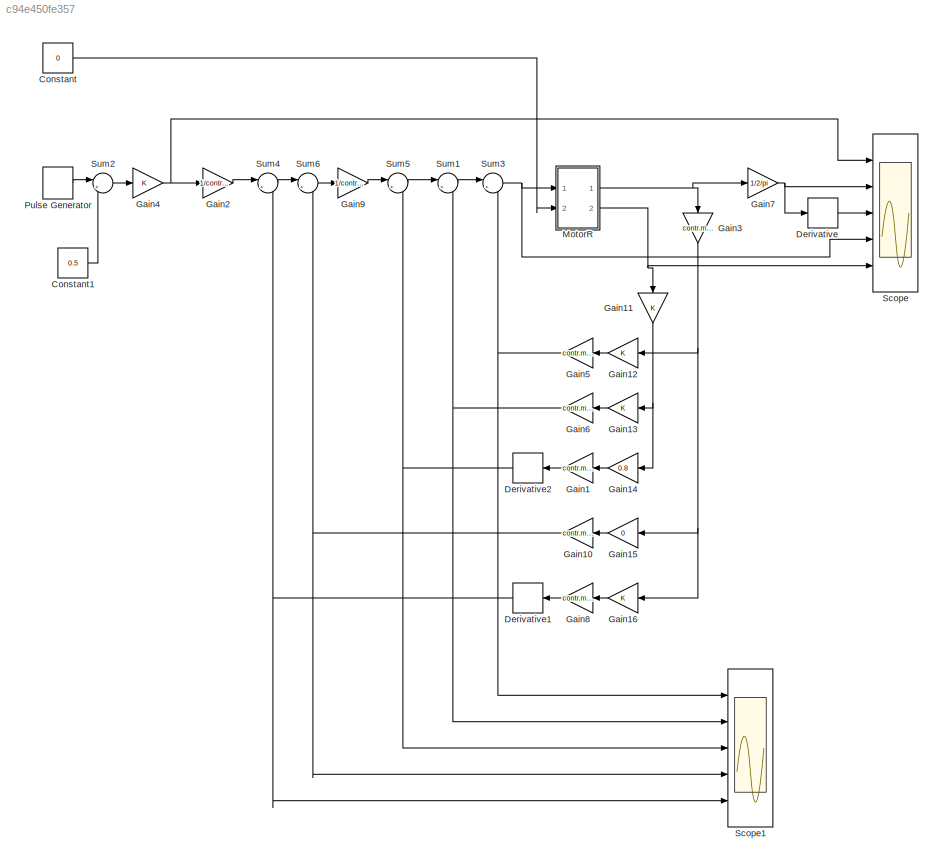
MODEL slx_c94e450fe357
KIND model
BLOCK [Constant] Constant
  Value = 0
BLOCK [Constant] Constant1
  Value = 0.5
BLOCK [Derivative] Derivative
BLOCK [Derivative] Derivative1
BLOCK [Derivative] Derivative2
BLOCK [Gain] Gain1
  Gain = contr.mot.L
  OutDataTypeStr = Inherit: Inherit via internal rule
  ParamDataTypeStr = Inherit: Inherit via internal rule
  SaturateOnIntegerOverflow = off
BLOCK [Gain] Gain10
  Gain = contr.mot.f
  OutDataTypeStr = Inherit: Inherit via internal rule
  ParamDataTypeStr = Inherit: Inherit via internal rule
  SaturateOnIntegerOverflow = off
BLOCK [Gain] Gain11
  OutDataTypeStr = Inherit: Inherit via internal rule
  ParamDataTypeStr = Inherit: Inherit via internal rule
  SaturateOnIntegerOverflow = off
BLOCK [Gain] Gain12
  OutDataTypeStr = Inherit: Inherit via internal rule
  ParamDataTypeStr = Inherit: Inherit via internal rule
  SaturateOnIntegerOverflow = off
BLOCK [Gain] Gain13
  OutDataTypeStr = Inherit: Inherit via internal rule
  ParamDataTypeStr = Inherit: Inherit via internal rule
  SaturateOnIntegerOverflow = off
BLOCK [Gain] Gain14
  Gain = 0.8
  OutDataTypeStr = Inherit: Inherit via internal rule
  ParamDataTypeStr = Inherit: Inherit via internal rule
  SaturateOnIntegerOverflow = off
BLOCK [Gain] Gain15
  Gain = 0
  OutDataTypeStr = Inherit: Inherit via internal rule
  ParamDataTypeStr = Inherit: Inherit via internal rule
  SaturateOnIntegerOverflow = off
BLOCK [Gain] Gain16
  OutDataTypeStr = Inherit: Inherit via internal rule
  ParamDataTypeStr = Inherit: Inherit via internal rule
  SaturateOnIntegerOverflow = off
BLOCK [Gain] Gain2
  Gain = 1/contr.mot.r
  OutDataTypeStr = Inherit: Inherit via internal rule
  ParamDataTypeStr = Inherit: Inherit via internal rule
  SaturateOnIntegerOverflow = off
BLOCK [Gain] Gain3
  Gain = contr.mot.r
  OutDataTypeStr = Inherit: Inherit via internal rule
  ParamDataTypeStr = Inherit: Inherit via internal rule
  SaturateOnIntegerOverflow = off
BLOCK [Gain] Gain4
  OutDataTypeStr = Inherit: Inherit via internal rule
  ParamDataTypeStr = Inherit: Inherit via internal rule
  SaturateOnIntegerOverflow = off
BLOCK [Gain] Gain5
  Gain = contr.mot.Ke
  OutDataTypeStr = Inherit: Inherit via internal rule
  ParamDataTypeStr = Inherit: Inherit via internal rule
  SaturateOnIntegerOverflow = off
BLOCK [Gain] Gain6
  Gain = contr.mot.R
  OutDataTypeStr = Inherit: Inherit via internal rule
  ParamDataTypeStr = Inherit: Inherit via internal rule
  SaturateOnIntegerOverflow = off
BLOCK [Gain] Gain7
  Gain = 1/2/pi
  OutDataTypeStr = Inherit: Inherit via internal rule
  ParamDataTypeStr = Inherit: Inherit via internal rule
  SaturateOnIntegerOverflow = off
BLOCK [Gain] Gain8
  Gain = contr.mot.J
  OutDataTypeStr = Inherit: Inherit via internal rule
  ParamDataTypeStr = Inherit: Inherit via internal rule
  SaturateOnIntegerOverflow = off
BLOCK [Gain] Gain9
  Gain = 1/contr.mot.Kc
  OutDataTypeStr = Inherit: Inherit via internal rule
  ParamDataTypeStr = Inherit: Inherit via internal rule
  SaturateOnIntegerOverflow = off
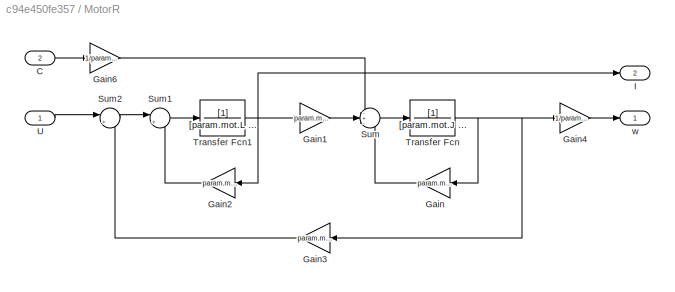
BLOCK [SubSystem] MotorR
  Ports = [2, 2]
  RequestExecContextInheritance = off
BLOCK [Inport] MotorR/C
  IconDisplay = Port number
  Port = 2
BLOCK [Gain] MotorR/Gain
  Gain = param.mot.f
  OutDataTypeStr = Inherit: Inherit via internal rule
  ParamDataTypeStr = Inherit: Inherit via internal rule
  SaturateOnIntegerOverflow = off
BLOCK [Gain] MotorR/Gain1
  Gain = param.mot.Kc
  OutDataTypeStr = Inherit: Inherit via internal rule
  ParamDataTypeStr = Inherit: Inherit via internal rule
  SaturateOnIntegerOverflow = off
BLOCK [Gain] MotorR/Gain2
  Gain = param.mot.R
  OutDataTypeStr = Inherit: Inherit via internal rule
  ParamDataTypeStr = Inherit: Inherit via internal rule
  SaturateOnIntegerOverflow = off
BLOCK [Gain] MotorR/Gain3
  Gain = param.mot.Ke
  OutDataTypeStr = Inherit: Inherit via internal rule
  ParamDataTypeStr = Inherit: Inherit via internal rule
  SaturateOnIntegerOverflow = off
BLOCK [Gain] MotorR/Gain4
  Gain = 1/param.mot.r
  OutDataTypeStr = Inherit: Inherit via internal rule
  ParamDataTypeStr = Inherit: Inherit via internal rule
  SaturateOnIntegerOverflow = off
BLOCK [Gain] MotorR/Gain6
  Gain = 1/param.mot.r
  OutDataTypeStr = Inherit: Inherit via internal rule
  ParamDataTypeStr = Inherit: Inherit via internal rule
  SaturateOnIntegerOverflow = off
BLOCK [Outport] MotorR/I
  IconDisplay = Port number
  Port = 2
BLOCK [Sum] MotorR/Sum
  IconShape = round
  InputSameDT = off
  Inputs = -+-
  OutDataTypeStr = Inherit: Inherit via internal rule
  Ports = [3, 1]
  SaturateOnIntegerOverflow = off
BLOCK [Sum] MotorR/Sum1
  IconShape = round
  InputSameDT = off
  Inputs = |+-
  OutDataTypeStr = Inherit: Inherit via internal rule
  Ports = [2, 1]
  SaturateOnIntegerOverflow = off
BLOCK [Sum] MotorR/Sum2
  IconShape = round
  InputSameDT = off
  Inputs = |+-
  OutDataTypeStr = Inherit: Inherit via internal rule
  Ports = [2, 1]
  SaturateOnIntegerOverflow = off
BLOCK [TransferFcn] MotorR/Transfer Fcn
  Denominator = [param.mot.J 0]
BLOCK [TransferFcn] MotorR/Transfer Fcn1
  Denominator = [param.mot.L 0]
BLOCK [Inport] MotorR/U
  IconDisplay = Port number
BLOCK [Outport] MotorR/w
  IconDisplay = Port number
BLOCK [DiscretePulseGenerator] Pulse Generator
  Period = 1
  PhaseDelay = 0.25
  Ports = [0, 1]
  PulseType = Time based
  PulseWidth = 50
BLOCK [Scope] Scope
  Floating = off
  MaxDataPoints = 500000
  NumInputPorts = 5
  Ports = [5]
  ShowLegends = off
  TimeRange = 10
  YMax = 0.5~10~40~30~3
  YMin = -0.5~-10~-40~-30~-3
BLOCK [Scope] Scope1
  Floating = off
  MaxDataPoints = 500000
  NumInputPorts = 5
  Ports = [5]
  SaveName = ScopeData1
  ShowLegends = off
  TimeRange = 10
  YMax = 30~5~1~1~0.04
  YMin = -30~-5~-1~-1~-0.04
BLOCK [Sum] Sum1
  IconShape = round
  InputSameDT = off
  Inputs = |++
  OutDataTypeStr = Inherit: Inherit via internal rule
  Ports = [2, 1]
  SaturateOnIntegerOverflow = off
BLOCK [Sum] Sum2
  IconShape = round
  InputSameDT = off
  Inputs = |+-
  OutDataTypeStr = Inherit: Inherit via internal rule
  Ports = [2, 1]
  SaturateOnIntegerOverflow = off
BLOCK [Sum] Sum3
  IconShape = round
  InputSameDT = off
  Inputs = |++
  OutDataTypeStr = Inherit: Inherit via internal rule
  Ports = [2, 1]
  SaturateOnIntegerOverflow = off
BLOCK [Sum] Sum4
  IconShape = round
  InputSameDT = off
  Inputs = |+-
  OutDataTypeStr = Inherit: Inherit via internal rule
  Ports = [2, 1]
  SaturateOnIntegerOverflow = off
BLOCK [Sum] Sum5
  IconShape = round
  InputSameDT = off
  Inputs = |++
  OutDataTypeStr = Inherit: Inherit via internal rule
  Ports = [2, 1]
  SaturateOnIntegerOverflow = off
BLOCK [Sum] Sum6
  IconShape = round
  InputSameDT = off
  Inputs = |++
  OutDataTypeStr = Inherit: Inherit via internal rule
  Ports = [2, 1]
  SaturateOnIntegerOverflow = off
LINE Constant1:1 -> Sum2:2
LINE Constant:1 -> MotorR:2
NET Derivative1:1 -> Scope1:5, Sum4:2
NET Derivative2:1 -> Scope1:3, Sum5:2
LINE Derivative:1 -> Scope:3
NET Gain10:1 -> Scope1:4, Sum6:2
NET Gain11:1 -> Gain13:1, Gain14:1
LINE Gain12:1 -> Gain5:1
LINE Gain13:1 -> Gain6:1
LINE Gain14:1 -> Gain1:1
LINE Gain15:1 -> Gain10:1
LINE Gain16:1 -> Gain8:1
LINE Gain1:1 -> Derivative2:1
LINE Gain2:1 -> Sum4:1
NET Gain3:1 -> Gain12:1, Gain15:1, Gain16:1
NET Gain4:1 -> Gain2:1, Scope:1
NET Gain5:1 -> Scope1:1, Sum3:2
NET Gain6:1 -> Scope1:2, Sum1:2
NET Gain7:1 -> Derivative:1, Scope:2
LINE Gain8:1 -> Derivative1:1
LINE Gain9:1 -> Sum5:1
LINE MotorR/C:1 -> MotorR/Gain6:1
LINE MotorR/Gain1:1 -> MotorR/Sum:2
LINE MotorR/Gain2:1 -> MotorR/Sum1:2
LINE MotorR/Gain3:1 -> MotorR/Sum2:2
LINE MotorR/Gain4:1 -> MotorR/w:1
LINE MotorR/Gain6:1 -> MotorR/Sum:1
LINE MotorR/Gain:1 -> MotorR/Sum:3
LINE MotorR/Sum1:1 -> MotorR/Transfer Fcn1:1
LINE MotorR/Sum2:1 -> MotorR/Sum1:1
LINE MotorR/Sum:1 -> MotorR/Transfer Fcn:1
NET MotorR/Transfer Fcn1:1 -> MotorR/Gain1:1, MotorR/Gain2:1, MotorR/I:1
NET MotorR/Transfer Fcn:1 -> MotorR/Gain3:1, MotorR/Gain4:1, MotorR/Gain:1
LINE MotorR/U:1 -> MotorR/Sum2:1
NET MotorR:1 -> Gain3:1, Gain7:1
NET MotorR:2 -> Gain11:1, Scope:5
LINE Pulse Generator:1 -> Sum2:1
LINE Sum1:1 -> Sum3:1
LINE Sum2:1 -> Gain4:1
NET Sum3:1 -> MotorR:1, Scope:4
LINE Sum4:1 -> Sum6:1
LINE Sum5:1 -> Sum1:1
LINE Sum6:1 -> Gain9:1
note: NET lines group one-source signal fan-out (src -> all destinations, sorted); 1:1 wires keep LINE
